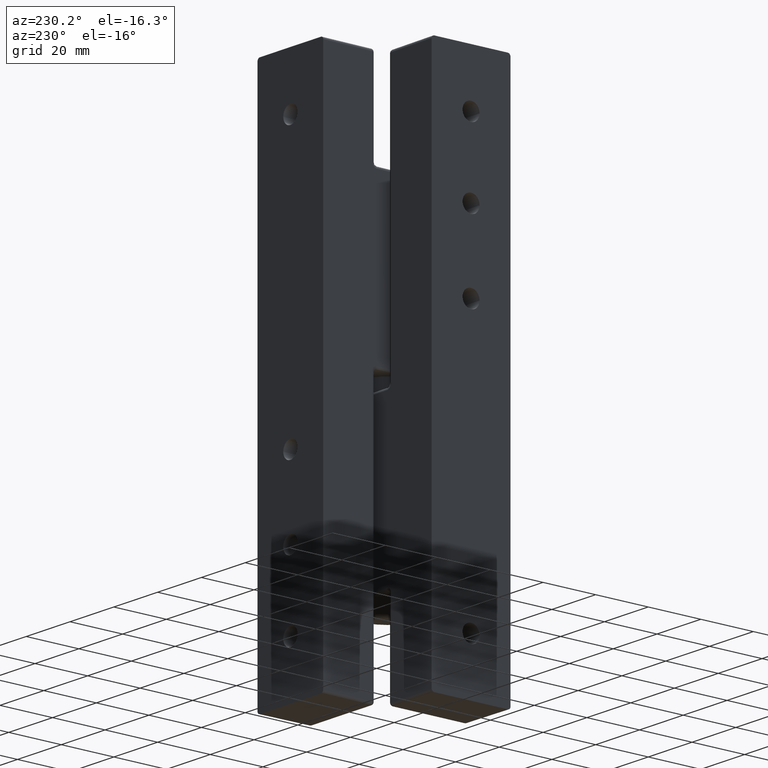
[diagram: clean part render]
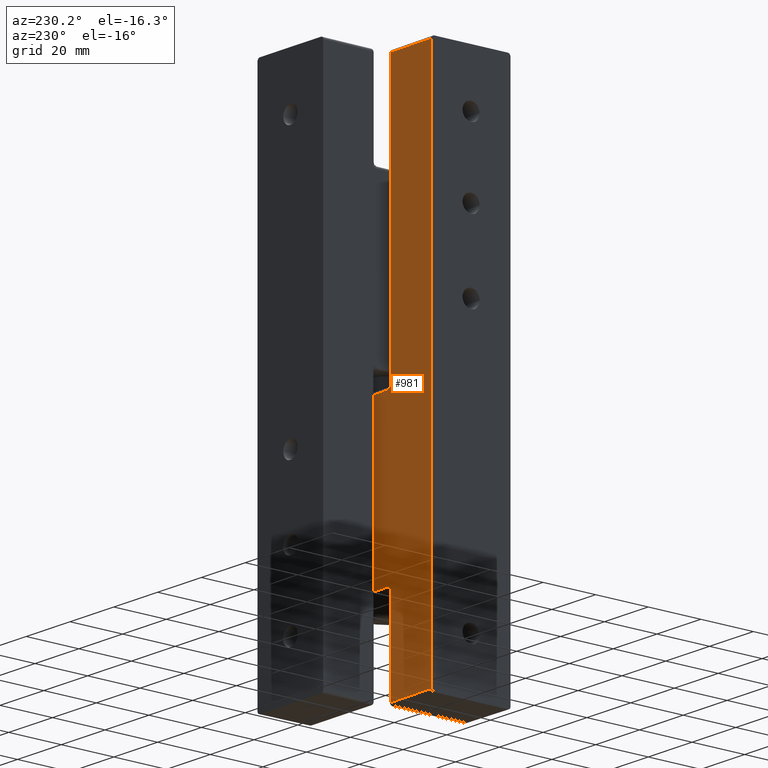
[diagram: same view with one face highlighted and labeled with its STEP entity id]
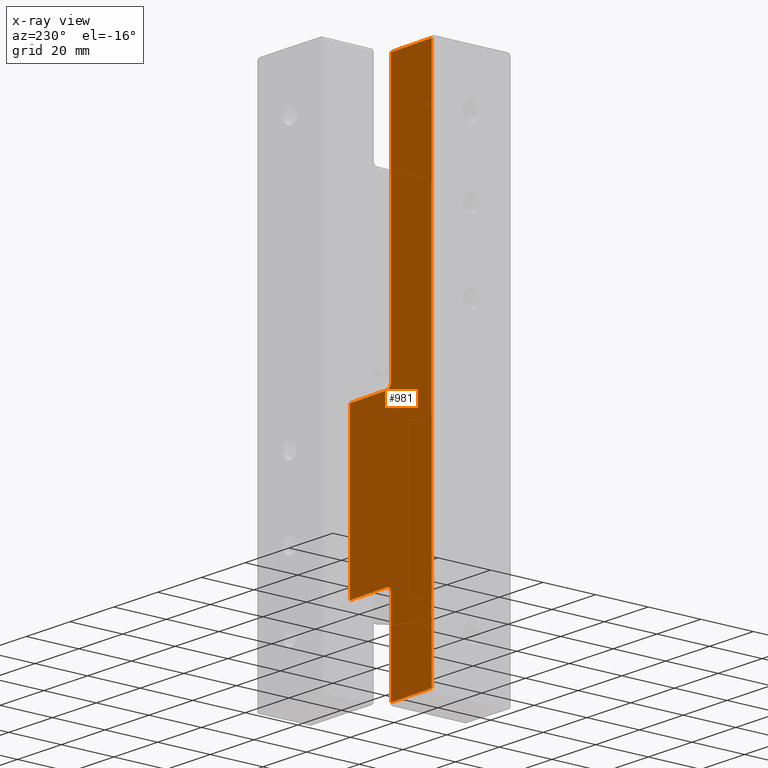
[diagram: x-ray of the same camera — body ghosted, the highlighted face saturated]
A machine part, auxiliary view. The second image highlights one B-rep face of the part: STEP entity #981.
The next image is the same camera in x-ray: the body ghosted, the highlighted face saturated — about 0% of this face is hidden behind the body in this view.
In plain terms, the highlighted planar face has unit normal (0.0192, 0.9998, 0).
Its self-contained STEP definition (entity closure, byte-faithful):
#82=PLANE('',#1080);
#113=LINE('',#1665,#157);
#119=LINE('',#1691,#163);
#123=LINE('',#1700,#167);
#127=LINE('',#1707,#171);
#128=LINE('',#1709,#172);
#129=LINE('',#1711,#173);
#130=LINE('',#1715,#174);
#131=LINE('',#1716,#175);
#157=VECTOR('',#1249,17.2531432005446);
#163=VECTOR('',#1279,33.5);
#167=VECTOR('',#1289,19.0227437580747);
#171=VECTOR('',#1297,198.);
#172=VECTOR('',#1298,19.0227437580747);
#173=VECTOR('',#1299,100.5);
#174=VECTOR('',#1302,17.2531432005446);
#175=VECTOR('',#1303,60.);
#248=FACE_OUTER_BOUND('',#321,.T.);
#321=EDGE_LOOP('',(#768,#769,#770,#771,#772,#773,#774,#775,#776,#777));
#488=ELLIPSE('',#1047,2.00036978829936,2.);
#492=ELLIPSE('',#1081,2.00036978829936,2.);
#502=VERTEX_POINT('',#1632);
#503=VERTEX_POINT('',#1633);
#513=VERTEX_POINT('',#1660);
#519=VERTEX_POINT('',#1684);
#523=VERTEX_POINT('',#1698);
#524=VERTEX_POINT('',#1706);
#525=VERTEX_POINT('',#1708);
#526=VERTEX_POINT('',#1710);
#527=VERTEX_POINT('',#1712);
#528=VERTEX_POINT('',#1714);
#588=EDGE_CURVE('',#502,#503,#488,.T.);
#604=EDGE_CURVE('',#503,#513,#113,.T.);
#617=EDGE_CURVE('',#519,#502,#119,.T.);
#622=EDGE_CURVE('',#523,#519,#123,.T.);
#626=EDGE_CURVE('',#524,#523,#127,.T.);
#627=EDGE_CURVE('',#525,#524,#128,.T.);
#628=EDGE_CURVE('',#526,#525,#129,.T.);
#629=EDGE_CURVE('',#527,#526,#492,.T.);
#630=EDGE_CURVE('',#528,#527,#130,.T.);
#631=EDGE_CURVE('',#513,#528,#131,.T.);
#768=ORIENTED_EDGE('',*,*,#604,.F.);
#769=ORIENTED_EDGE('',*,*,#588,.F.);
#770=ORIENTED_EDGE('',*,*,#617,.F.);
#771=ORIENTED_EDGE('',*,*,#622,.F.);
#772=ORIENTED_EDGE('',*,*,#626,.F.);
#773=ORIENTED_EDGE('',*,*,#627,.F.);
#774=ORIENTED_EDGE('',*,*,#628,.F.);
#775=ORIENTED_EDGE('',*,*,#629,.F.);
#776=ORIENTED_EDGE('',*,*,#630,.F.);
#777=ORIENTED_EDGE('',*,*,#631,.F.);
#981=ADVANCED_FACE('',(#248),#82,.T.);
#1047=AXIS2_PLACEMENT_3D('',#1634,#1211,#1212);
#1080=AXIS2_PLACEMENT_3D('',#1705,#1295,#1296);
#1081=AXIS2_PLACEMENT_3D('',#1713,#1300,#1301);
#1211=DIRECTION('center_axis',(-0.999815140029847,0.0192272142313431,0.));
#1212=DIRECTION('ref_axis',(-0.0192272142313431,-0.999815140029847,-4.30131893171611E-15));
#1249=DIRECTION('',(0.0192272142313431,0.999815140029847,0.));
#1279=DIRECTION('',(0.,0.,1.));
#1289=DIRECTION('',(0.0192272142313431,0.999815140029847,0.));
#1295=DIRECTION('center_axis',(-0.999815140029847,0.0192272142313431,0.));
#1296=DIRECTION('ref_axis',(-0.0192272142313431,-0.999815140029847,0.));
#1297=DIRECTION('',(0.,0.,-1.));
#1298=DIRECTION('',(-0.0192272142313431,-0.999815140029847,0.));
#1299=DIRECTION('',(0.,0.,1.));
#1300=DIRECTION('center_axis',(-0.999815140029847,0.0192272142313431,0.));
#1301=DIRECTION('ref_axis',(-0.0192272142313431,-0.999815140029847,-6.93761118018726E-17));
#1302=DIRECTION('',(-0.0192272142313431,-0.999815140029847,0.));
#1303=DIRECTION('',(0.,0.,1.));
#1632=CARTESIAN_POINT('',(-14.6342456304956,19.0192272142313,-65.5));
#1633=CARTESIAN_POINT('',(-14.595784092034,21.0192272142313,-63.5));
#1634=CARTESIAN_POINT('Origin',(-14.595784092034,21.0192272142313,-65.5));
#1660=CARTESIAN_POINT('',(-14.2640542115531,38.2691809992388,-63.5));
#1665=CARTESIAN_POINT('',(-14.4397905068856,29.1308936419484,-63.5));
#1684=CARTESIAN_POINT('',(-14.6342456304956,19.0192272142313,-99.));
#1691=CARTESIAN_POINT('',(-14.6342456304956,19.0192272142313,-41.125));
#1698=CARTESIAN_POINT('',(-15.,0.,-99.));
#1700=CARTESIAN_POINT('',(-14.4211032266758,30.1026322128578,-99.));
#1705=CARTESIAN_POINT('Origin',(-14.2640542115531,38.2691809992388,0.));
#1706=CARTESIAN_POINT('',(-15.,0.,99.));
#1707=CARTESIAN_POINT('',(-15.,0.,0.));
#1708=CARTESIAN_POINT('',(-14.6342456304956,19.0192272142313,99.));
#1709=CARTESIAN_POINT('',(-14.4211032266758,30.1026322128578,99.));
#1710=CARTESIAN_POINT('',(-14.6342456304956,19.0192272142313,-1.5));
#1711=CARTESIAN_POINT('',(-14.6342456304956,19.0192272142313,24.375));
#1712=CARTESIAN_POINT('',(-14.595784092034,21.0192272142313,-3.5));
#1713=CARTESIAN_POINT('Origin',(-14.595784092034,21.0192272142313,-1.5));
#1714=CARTESIAN_POINT('',(-14.2640542115531,38.2691809992388,-3.5));
#1715=CARTESIAN_POINT('',(-14.4342452203791,29.4192485402848,-3.5));
#1716=CARTESIAN_POINT('',(-14.2640542115531,38.2691809992388,0.));